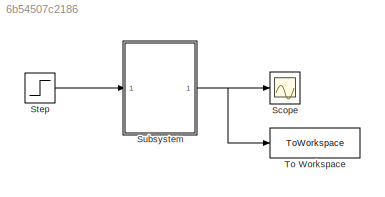
MODEL slx_6b54507c2186
KIND model
CONFIG AbsTol = auto
CONFIG EnableMultiTasking = off
CONFIG FixedStep = auto
CONFIG MaxStep = auto
CONFIG MinStep = auto
CONFIG RelTol = 1e-3
CONFIG SampleTimeConstraint = Unconstrained
CONFIG SolverName = VariableStepAuto
CONFIG StartTime = 0.0
CONFIG StopTime = 60
WORKSPACE source: mxarray member
WORKSPACE a0 = -5
WORKSPACE a1 = -4
WORKSPACE a2 = 1
BLOCK [Scope] Scope
  Floating = off
  NumInputPorts = 1
  ScopeSpecificationString = Simulink.scopes.TimeScopeBlockCfg('CurrentConfiguration', extmgr.ConfigurationSet(extmgr.Configuration('Core','General UI',true),extmgr.Configuration('Core','Source UI',true),extmgr.Configuration('Sources','WiredSimulink',true),extmgr.Configuration('Visuals','Time Domain',true,'SerializedDisplays',{struct('MinYLimReal','-0.21607','MaxYLimReal','1.94466','YLabelReal','','MinYLimMag','0.00000','MaxY...<+1365ch>
BLOCK [Step] Step
  SampleTime = 0
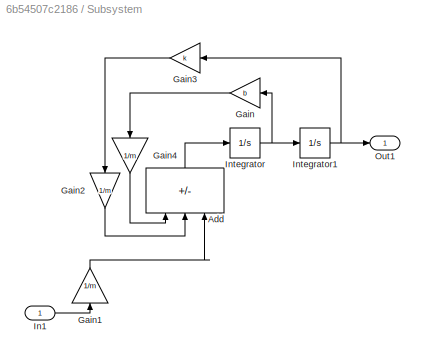
BLOCK [SubSystem] Subsystem
BLOCK [Sum] Subsystem/Add
  IconShape = rectangular
  Inputs = --+
  NameLocation = right
BLOCK [Gain] Subsystem/Gain
  Gain = b
  NameLocation = top
BLOCK [Gain] Subsystem/Gain1
  Gain = 1/m
  NameLocation = right
BLOCK [Gain] Subsystem/Gain2
  Gain = 1/m
  NameLocation = left
BLOCK [Gain] Subsystem/Gain3
  Gain = k
  NameLocation = top
BLOCK [Gain] Subsystem/Gain4
  Gain = 1/m
  NameLocation = left
BLOCK [Inport] Subsystem/In1
BLOCK [Integrator] Subsystem/Integrator
BLOCK [Integrator] Subsystem/Integrator1
BLOCK [Outport] Subsystem/Out1
BLOCK [ToWorkspace] To Workspace
  FixptAsFi = on
  MaxDataPoints = inf
  SampleTime = -1
  SaveFormat = Timeseries
  VariableName = simout
LINE Step:1 -> Subsystem:1
LINE Subsystem/Add:1 -> Subsystem/Integrator:1
LINE Subsystem/Gain1:1 -> Subsystem/Add:3
LINE Subsystem/Gain2:1 -> Subsystem/Add:2
LINE Subsystem/Gain3:1 -> Subsystem/Gain2:1
LINE Subsystem/Gain4:1 -> Subsystem/Add:1
LINE Subsystem/Gain:1 -> Subsystem/Gain4:1
LINE Subsystem/In1:1 -> Subsystem/Gain1:1
NET Subsystem/Integrator1:1 -> Subsystem/Gain3:1, Subsystem/Out1:1
NET Subsystem/Integrator:1 -> Subsystem/Gain:1, Subsystem/Integrator1:1
NET Subsystem:1 -> Scope:1, To Workspace:1
note: NET lines group one-source signal fan-out (src -> all destinations, sorted); 1:1 wires keep LINE
